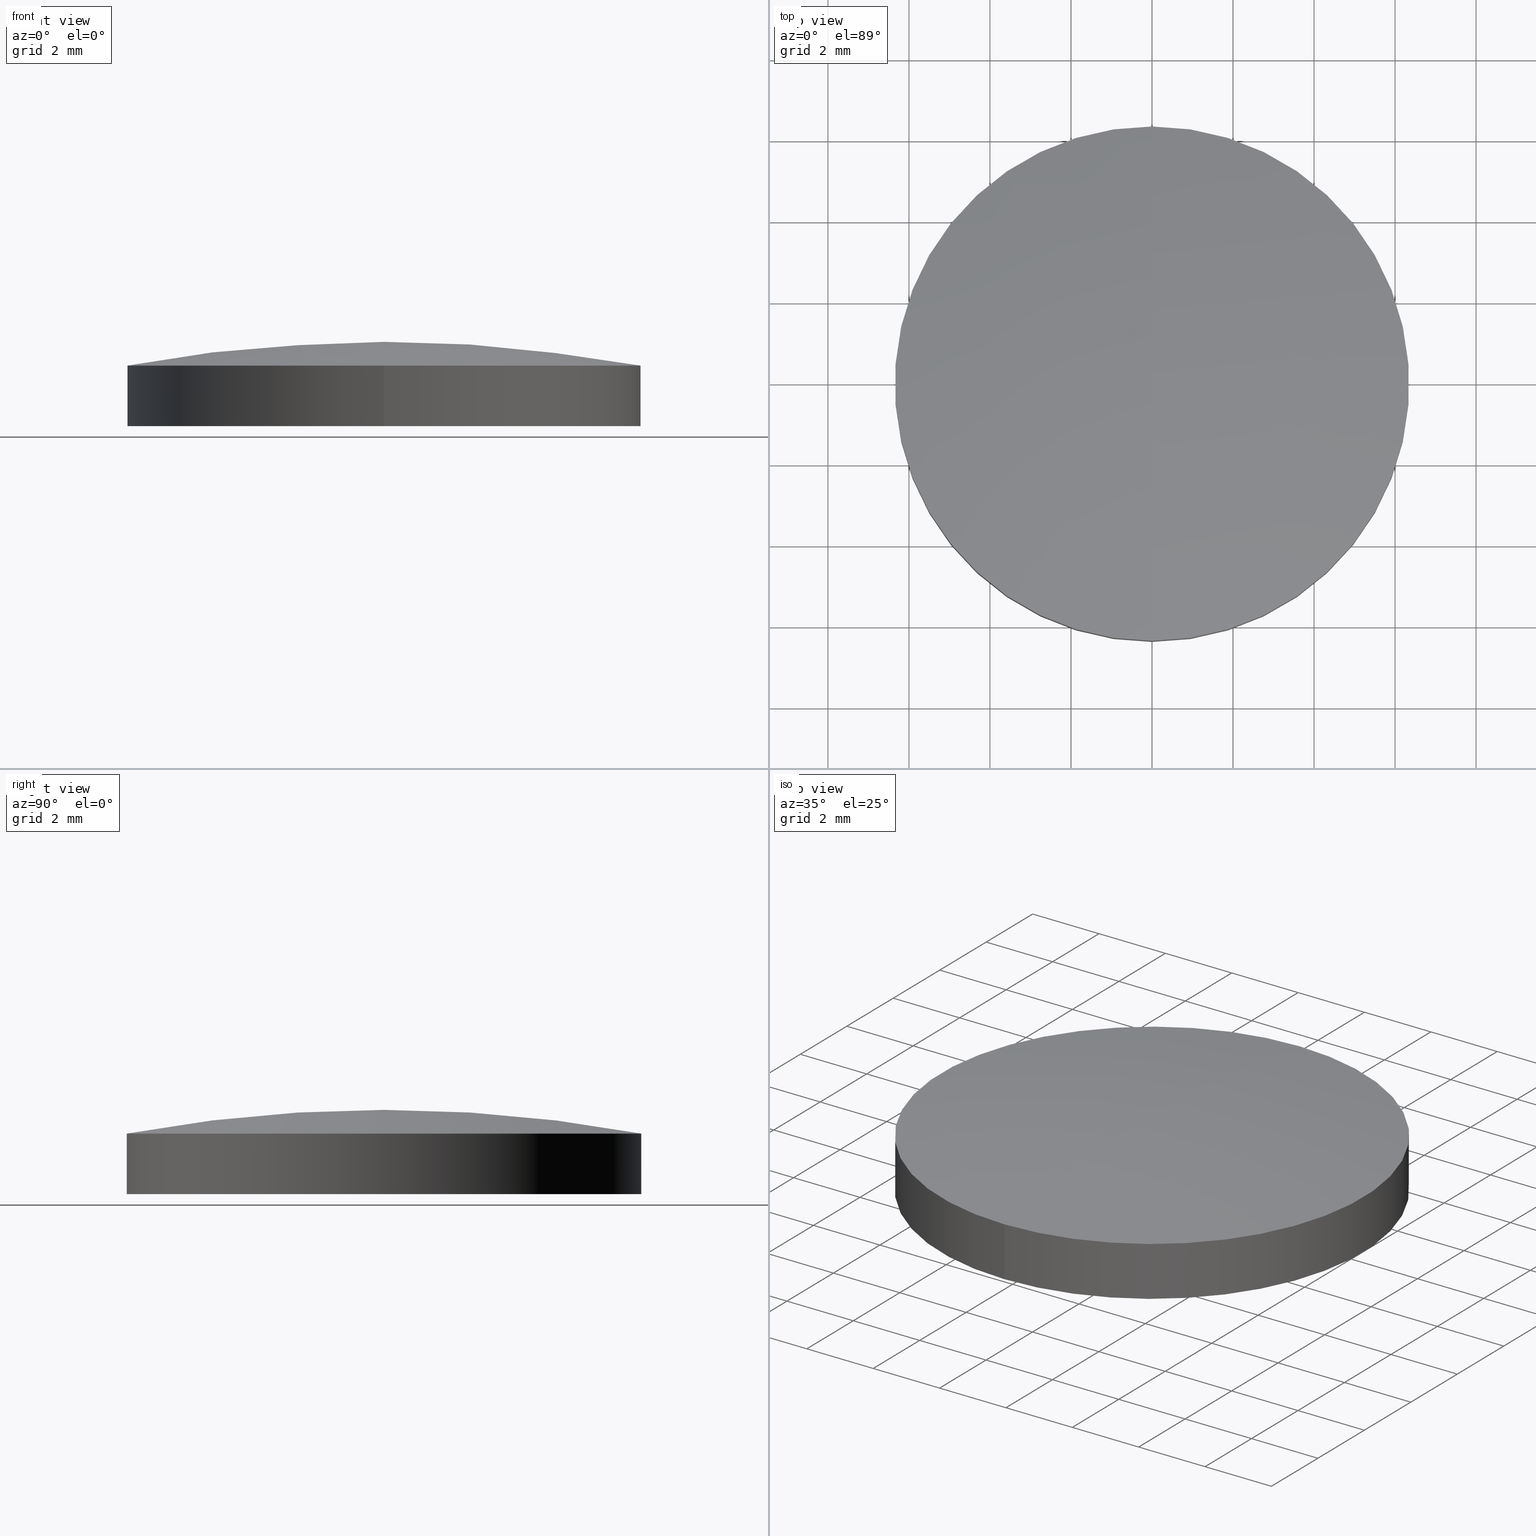
[diagram: canonical four-view strip — front | top / right | iso, engineering-drawing reading convention]
A machine part, canonical four-view strip (front | top / right | iso — engineering-drawing reading convention). The complete STEP part file that produces these views, byte-faithful:
ISO-10303-21;
HEADER;
FILE_DESCRIPTION (( 'STEP AP214' ),
    '1' );
FILE_NAME ('22971-E0W.STEP',
    '2011-10-06T18:34:03',
    ( 'Admin' ),
    ( '' ),
    'SwSTEP 2.0',
    'SolidWorks 2011',
    '' );
FILE_SCHEMA (( 'AUTOMOTIVE_DESIGN' ));
ENDSEC;

DATA;
#1 = SPHERICAL_SURFACE ( 'NONE', #36, 34.71000000000000100 ) ;
#2 = STYLED_ITEM ( 'NONE', ( #63 ), #143 ) ;
#3 =( LENGTH_UNIT ( ) NAMED_UNIT ( * ) SI_UNIT ( .MILLI., .METRE. ) );
#4 = MECHANICAL_DESIGN_GEOMETRIC_PRESENTATION_REPRESENTATION (  '', ( #2 ), #86 ) ;
#5 = PRESENTATION_LAYER_ASSIGNMENT (  '', '', ( #2 ) ) ;
#6 =( GEOMETRIC_REPRESENTATION_CONTEXT ( 3 ) GLOBAL_UNCERTAINTY_ASSIGNED_CONTEXT ( ( #208 ) ) GLOBAL_UNIT_ASSIGNED_CONTEXT ( ( #45, #20, #218 ) ) REPRESENTATION_CONTEXT ( 'NONE', 'WORKASPACE' ) );
#7 = DIRECTION ( 'NONE',  ( 0.0000000000000000000, -1.000000000000000000, -1.707404996040164500E-016 ) ) ;
#8 = CARTESIAN_POINT ( 'NONE',  ( 0.0000000000000000000, 0.0000000000000000000, -33.67000000000000200 ) ) ;
#9 = CARTESIAN_POINT ( 'NONE',  ( 0.0000000000000000000, -4.250749039840463200E-015, 1.039999999999999100 ) ) ;
#10 = DIRECTION ( 'NONE',  ( 0.0000000000000000000, 1.000000000000000000, 1.999105129330806300E-016 ) ) ;
#11 = DIRECTION ( 'NONE',  ( -1.000000000000000000, 0.0000000000000000000, 0.0000000000000000000 ) ) ;
#12 = FACE_OUTER_BOUND ( 'NONE', #118, .T. ) ;
#13 = DIRECTION ( 'NONE',  ( -0.0000000000000000000, -1.836970198721029900E-016, 1.000000000000000000 ) ) ;
#14 = PRESENTATION_STYLE_ASSIGNMENT (( #15 ) ) ;
#15 = SURFACE_STYLE_USAGE ( .BOTH. , #24 ) ;
#16 = CARTESIAN_POINT ( 'NONE',  ( 0.0000000000000000000, 1.076081682970368500E-016, 0.4542084157273872900 ) ) ;
#17 = CIRCLE ( 'NONE', #39, 6.349999999999999600 ) ;
#18 = SURFACE_STYLE_FILL_AREA ( #25 ) ;
#19 = CARTESIAN_POINT ( 'NONE',  ( 0.0000000000000000000, 3.820898013339744900E-016, -1.040000000000001400 ) ) ;
#20 =( NAMED_UNIT ( * ) PLANE_ANGLE_UNIT ( ) SI_UNIT ( $, .RADIAN. ) );
#21 = DIRECTION ( 'NONE',  ( 0.0000000000000000000, -1.000000000000000000, -1.878145495644181300E-016 ) ) ;
#22 = DIRECTION ( 'NONE',  ( -0.0000000000000000000, -1.836970198721029900E-016, 1.000000000000000000 ) ) ;
#23 = DIRECTION ( 'NONE',  ( -0.0000000000000000000, -1.836970198721029900E-016, 1.000000000000000000 ) ) ;
#24 = SURFACE_SIDE_STYLE ('',( #18 ) ) ;
#25 = FILL_AREA_STYLE ('',( #37 ) ) ;
#26 = CYLINDRICAL_SURFACE ( 'NONE', #32, 6.349999999999999600 ) ;
#27 = DIRECTION ( 'NONE',  ( -0.0000000000000000000, -1.836970198721029900E-016, 1.000000000000000000 ) ) ;
#28 = CARTESIAN_POINT ( 'NONE',  ( 0.0000000000000000000, -6.349999999999999600, 1.039999999999999100 ) ) ;
#29 = LINE ( 'NONE', #28, #35 ) ;
#30 = CARTESIAN_POINT ( 'NONE',  ( 7.776507174585691200E-016, 6.349999999999998800, 0.4542084157273885100 ) ) ;
#31 = CARTESIAN_POINT ( 'NONE',  ( 7.776507174585692200E-016, 6.349999999999999600, -1.040000000000000300 ) ) ;
#32 = AXIS2_PLACEMENT_3D ( 'NONE', #40, #23, #7 ) ;
#33 = COLOUR_RGB ( '',0.7921568627450980000, 0.8196078431372548800, 0.9333333333333333500 ) ;
#34 = CARTESIAN_POINT ( 'NONE',  ( 0.0000000000000000000, -6.349999999999999600, -1.040000000000002500 ) ) ;
#35 = VECTOR ( 'NONE', #27, 1000.000000000000000 ) ;
#36 = AXIS2_PLACEMENT_3D ( 'NONE', #8, #11, #10 ) ;
#37 = FILL_AREA_STYLE_COLOUR ( '', #33 ) ;
#38 =( NAMED_UNIT ( * ) PLANE_ANGLE_UNIT ( ) SI_UNIT ( $, .RADIAN. ) );
#39 = AXIS2_PLACEMENT_3D ( 'NONE', #19, #13, #44 ) ;
#40 = CARTESIAN_POINT ( 'NONE',  ( 0.0000000000000000000, 0.0000000000000000000, 1.040000000000000000 ) ) ;
#41 = CARTESIAN_POINT ( 'NONE',  ( 0.0000000000000000000, -6.349999999999998800, 0.4542084157273861300 ) ) ;
#42 = CIRCLE ( 'NONE', #43, 6.349999999999998800 ) ;
#43 = AXIS2_PLACEMENT_3D ( 'NONE', #16, #22, #21 ) ;
#44 = DIRECTION ( 'NONE',  ( 0.0000000000000000000, -1.000000000000000000, -1.707404996040164500E-016 ) ) ;
#45 =( LENGTH_UNIT ( ) NAMED_UNIT ( * ) SI_UNIT ( .MILLI., .METRE. ) );
#46 = MECHANICAL_DESIGN_GEOMETRIC_PRESENTATION_REPRESENTATION (  '', ( #48 ), #6 ) ;
#47 = PRESENTATION_LAYER_ASSIGNMENT (  '', '', ( #48 ) ) ;
#48 = STYLED_ITEM ( 'NONE', ( #14 ), #141 ) ;
#49 = UNCERTAINTY_MEASURE_WITH_UNIT (LENGTH_MEASURE( 1.000000000000000100E-005 ), #3, 'distance_accuracy_value', 'NONE');
#50 =( NAMED_UNIT ( * ) SI_UNIT ( $, .STERADIAN. ) SOLID_ANGLE_UNIT ( ) );
#51 = AXIS2_PLACEMENT_3D ( 'NONE', #56, #60, #59 ) ;
#52 = SURFACE_STYLE_FILL_AREA ( #61 ) ;
#53 =( NAMED_UNIT ( * ) PLANE_ANGLE_UNIT ( ) SI_UNIT ( $, .RADIAN. ) );
#54 = SURFACE_SIDE_STYLE ('',( #52 ) ) ;
#55 = FACE_OUTER_BOUND ( 'NONE', #136, .T. ) ;
#56 = CARTESIAN_POINT ( 'NONE',  ( 0.0000000000000000000, 3.820898013339744900E-016, -1.040000000000001400 ) ) ;
#57 = CIRCLE ( 'NONE', #51, 6.349999999999999600 ) ;
#58 = COLOUR_RGB ( '',0.7921568627450980000, 0.8196078431372548800, 0.9333333333333333500 ) ;
#59 = DIRECTION ( 'NONE',  ( 0.0000000000000000000, -1.000000000000000000, -1.707404996040164500E-016 ) ) ;
#60 = DIRECTION ( 'NONE',  ( -0.0000000000000000000, -1.836970198721029900E-016, 1.000000000000000000 ) ) ;
#61 = FILL_AREA_STYLE ('',( #66 ) ) ;
#62 = PRESENTATION_LAYER_ASSIGNMENT (  '', '', ( #67 ) ) ;
#63 = PRESENTATION_STYLE_ASSIGNMENT (( #64 ) ) ;
#64 = SURFACE_STYLE_USAGE ( .BOTH. , #54 ) ;
#65 =( LENGTH_UNIT ( ) NAMED_UNIT ( * ) SI_UNIT ( .MILLI., .METRE. ) );
#66 = FILL_AREA_STYLE_COLOUR ( '', #58 ) ;
#67 = STYLED_ITEM ( 'NONE', ( #76 ), #200 ) ;
#68 = MECHANICAL_DESIGN_GEOMETRIC_PRESENTATION_REPRESENTATION (  '', ( #67 ), #93 ) ;
#69 = AXIS2_PLACEMENT_3D ( 'NONE', #70, #89, #88 ) ;
#70 = CARTESIAN_POINT ( 'NONE',  ( 0.0000000000000000000, 3.820898013339743900E-016, -1.040000000000000700 ) ) ;
#71 = FILL_AREA_STYLE ('',( #72 ) ) ;
#72 = FILL_AREA_STYLE_COLOUR ( '', #83 ) ;
#73 = PLANE ( 'NONE',  #69 ) ;
#74 = FACE_OUTER_BOUND ( 'NONE', #121, .T. ) ;
#75 = DIRECTION ( 'NONE',  ( -1.000000000000000000, 0.0000000000000000000, 0.0000000000000000000 ) ) ;
#76 = PRESENTATION_STYLE_ASSIGNMENT (( #77 ) ) ;
#77 = SURFACE_STYLE_USAGE ( .BOTH. , #78 ) ;
#78 = SURFACE_SIDE_STYLE ('',( #79 ) ) ;
#79 = SURFACE_STYLE_FILL_AREA ( #71 ) ;
#80 = CARTESIAN_POINT ( 'NONE',  ( 0.0000000000000000000, 0.0000000000000000000, -33.67000000000000200 ) ) ;
#81 = PRESENTATION_LAYER_ASSIGNMENT (  '', '', ( #82 ) ) ;
#82 = STYLED_ITEM ( 'NONE', ( #90 ), #202 ) ;
#83 = COLOUR_RGB ( '',0.7921568627450980000, 0.8196078431372548800, 0.9333333333333333500 ) ;
#84 = DIRECTION ( 'NONE',  ( 0.0000000000000000000, 1.000000000000000000, 1.999105129330806300E-016 ) ) ;
#85 = SPHERICAL_SURFACE ( 'NONE', #91, 34.71000000000000100 ) ;
#86 =( GEOMETRIC_REPRESENTATION_CONTEXT ( 3 ) GLOBAL_UNCERTAINTY_ASSIGNED_CONTEXT ( ( #49 ) ) GLOBAL_UNIT_ASSIGNED_CONTEXT ( ( #3, #38, #50 ) ) REPRESENTATION_CONTEXT ( 'NONE', 'WORKASPACE' ) );
#87 = MECHANICAL_DESIGN_GEOMETRIC_PRESENTATION_REPRESENTATION (  '', ( #82 ), #110 ) ;
#88 = DIRECTION ( 'NONE',  ( 0.0000000000000000000, -1.000000000000000000, -1.836970198721029900E-016 ) ) ;
#89 = DIRECTION ( 'NONE',  ( 0.0000000000000000000, -1.836970198721029900E-016, 1.000000000000000000 ) ) ;
#90 = PRESENTATION_STYLE_ASSIGNMENT (( #104 ) ) ;
#91 = AXIS2_PLACEMENT_3D ( 'NONE', #80, #75, #84 ) ;
#92 = UNCERTAINTY_MEASURE_WITH_UNIT (LENGTH_MEASURE( 1.000000000000000100E-005 ), #65, 'distance_accuracy_value', 'NONE');
#93 =( GEOMETRIC_REPRESENTATION_CONTEXT ( 3 ) GLOBAL_UNCERTAINTY_ASSIGNED_CONTEXT ( ( #92 ) ) GLOBAL_UNIT_ASSIGNED_CONTEXT ( ( #65, #53, #94 ) ) REPRESENTATION_CONTEXT ( 'NONE', 'WORKASPACE' ) );
#94 =( NAMED_UNIT ( * ) SI_UNIT ( $, .STERADIAN. ) SOLID_ANGLE_UNIT ( ) );
#95 = AXIS2_PLACEMENT_3D ( 'NONE', #100, #99, #101 ) ;
#96 = CIRCLE ( 'NONE', #95, 34.71000000000000100 ) ;
#97 =( NAMED_UNIT ( * ) PLANE_ANGLE_UNIT ( ) SI_UNIT ( $, .RADIAN. ) );
#98 =( LENGTH_UNIT ( ) NAMED_UNIT ( * ) SI_UNIT ( .MILLI., .METRE. ) );
#99 = DIRECTION ( 'NONE',  ( 1.000000000000000000, 0.0000000000000000000, 0.0000000000000000000 ) ) ;
#100 = CARTESIAN_POINT ( 'NONE',  ( 0.0000000000000000000, 0.0000000000000000000, -33.67000000000000200 ) ) ;
#101 = DIRECTION ( 'NONE',  ( 0.0000000000000000000, 0.0000000000000000000, -1.000000000000000000 ) ) ;
#102 = FACE_OUTER_BOUND ( 'NONE', #199, .T. ) ;
#103 = COLOUR_RGB ( '',0.7921568627450980000, 0.8196078431372548800, 0.9333333333333333500 ) ;
#104 = SURFACE_STYLE_USAGE ( .BOTH. , #105 ) ;
#105 = SURFACE_SIDE_STYLE ('',( #106 ) ) ;
#106 = SURFACE_STYLE_FILL_AREA ( #107 ) ;
#107 = FILL_AREA_STYLE ('',( #108 ) ) ;
#108 = FILL_AREA_STYLE_COLOUR ( '', #103 ) ;
#109 =( NAMED_UNIT ( * ) SI_UNIT ( $, .STERADIAN. ) SOLID_ANGLE_UNIT ( ) );
#110 =( GEOMETRIC_REPRESENTATION_CONTEXT ( 3 ) GLOBAL_UNCERTAINTY_ASSIGNED_CONTEXT ( ( #111 ) ) GLOBAL_UNIT_ASSIGNED_CONTEXT ( ( #98, #97, #109 ) ) REPRESENTATION_CONTEXT ( 'NONE', 'WORKASPACE' ) );
#111 = UNCERTAINTY_MEASURE_WITH_UNIT (LENGTH_MEASURE( 1.000000000000000100E-005 ), #98, 'distance_accuracy_value', 'NONE');
#112 = ORIENTED_EDGE ( 'NONE', *, *, #142, .T. ) ;
#113 = EDGE_CURVE ( 'NONE', #135, #137, #225, .T. ) ;
#114 = ORIENTED_EDGE ( 'NONE', *, *, #113, .T. ) ;
#115 = ORIENTED_EDGE ( 'NONE', *, *, #201, .F. ) ;
#116 = ORIENTED_EDGE ( 'NONE', *, *, #205, .T. ) ;
#117 = ORIENTED_EDGE ( 'NONE', *, *, #126, .T. ) ;
#118 = EDGE_LOOP ( 'NONE', ( #117, #116, #115 ) ) ;
#119 = ADVANCED_FACE ( 'NONE', ( #219 ), #26, .T. ) ;
#120 = EDGE_CURVE ( 'NONE', #135, #140, #17, .T. ) ;
#121 = EDGE_LOOP ( 'NONE', ( #130, #124, #129 ) ) ;
#122 = ORIENTED_EDGE ( 'NONE', *, *, #113, .F. ) ;
#123 = ORIENTED_EDGE ( 'NONE', *, *, #134, .T. ) ;
#124 = ORIENTED_EDGE ( 'NONE', *, *, #203, .T. ) ;
#125 = ORIENTED_EDGE ( 'NONE', *, *, #126, .F. ) ;
#126 = EDGE_CURVE ( 'NONE', #137, #138, #42, .T. ) ;
#127 = ORIENTED_EDGE ( 'NONE', *, *, #203, .F. ) ;
#128 = ORIENTED_EDGE ( 'NONE', *, *, #120, .F. ) ;
#129 = ORIENTED_EDGE ( 'NONE', *, *, #201, .T. ) ;
#130 = ORIENTED_EDGE ( 'NONE', *, *, #205, .F. ) ;
#131 = EDGE_LOOP ( 'NONE', ( #122, #132, #123, #125 ) ) ;
#132 = ORIENTED_EDGE ( 'NONE', *, *, #120, .T. ) ;
#133 = ORIENTED_EDGE ( 'NONE', *, *, #134, .F. ) ;
#134 = EDGE_CURVE ( 'NONE', #140, #138, #29, .T. ) ;
#135 = VERTEX_POINT ( 'NONE', #31 ) ;
#136 = EDGE_LOOP ( 'NONE', ( #198, #128 ) ) ;
#137 = VERTEX_POINT ( 'NONE', #30 ) ;
#138 = VERTEX_POINT ( 'NONE', #41 ) ;
#139 = VERTEX_POINT ( 'NONE', #9 ) ;
#140 = VERTEX_POINT ( 'NONE', #34 ) ;
#141 = ADVANCED_FACE ( 'NONE', ( #12 ), #1, .T. ) ;
#142 = EDGE_CURVE ( 'NONE', #140, #135, #57, .T. ) ;
#143 = ADVANCED_FACE ( 'NONE', ( #55 ), #73, .F. ) ;
#144 = OPEN_SHELL ( 'NONE', ( #141, #202, #119, #200, #143 ) ) ;
#145 = DIRECTION ( 'NONE',  ( 0.0000000000000000000, -1.000000000000000000, -1.707404996040164500E-016 ) ) ;
#146 = DIRECTION ( 'NONE',  ( -0.0000000000000000000, -1.836970198721029900E-016, 1.000000000000000000 ) ) ;
#147 = AXIS2_PLACEMENT_3D ( 'NONE', #175, #146, #145 ) ;
#148 = DIRECTION ( 'NONE',  ( -0.0000000000000000000, -1.836970198721029900E-016, 1.000000000000000000 ) ) ;
#149 = SURFACE_STYLE_FILL_AREA ( #153 ) ;
#150 = DIRECTION ( 'NONE',  ( -1.224646799147353000E-016, -1.000000000000000000, 0.0000000000000000000 ) ) ;
#151 = DIRECTION ( 'NONE',  ( -1.000000000000000000, 1.224646799147353200E-016, 2.249639673992786700E-032 ) ) ;
#152 = AXIS2_PLACEMENT_3D ( 'NONE', #155, #151, #150 ) ;
#153 = FILL_AREA_STYLE ('',( #154 ) ) ;
#154 = FILL_AREA_STYLE_COLOUR ( '', #165 ) ;
#155 = CARTESIAN_POINT ( 'NONE',  ( 0.0000000000000000000, 0.0000000000000000000, -33.67000000000000200 ) ) ;
#156 = CYLINDRICAL_SURFACE ( 'NONE', #147, 6.349999999999999600 ) ;
#157 = CIRCLE ( 'NONE', #193, 6.349999999999998800 ) ;
#158 = CARTESIAN_POINT ( 'NONE',  ( 0.0000000000000000000, 0.0000000000000000000, 0.0000000000000000000 ) ) ;
#159 = MECHANICAL_DESIGN_GEOMETRIC_PRESENTATION_REPRESENTATION (  '', ( #161 ), #173 ) ;
#160 = PRESENTATION_LAYER_ASSIGNMENT (  '', '', ( #161 ) ) ;
#161 = STYLED_ITEM ( 'NONE', ( #162 ), #188 ) ;
#162 = PRESENTATION_STYLE_ASSIGNMENT (( #163 ) ) ;
#163 = SURFACE_STYLE_USAGE ( .BOTH. , #164 ) ;
#164 = SURFACE_SIDE_STYLE ('',( #149 ) ) ;
#165 = COLOUR_RGB ( '',0.7921568627450980000, 0.8196078431372548800, 0.9333333333333333500 ) ;
#166 = APPLICATION_CONTEXT ( 'automotive_design' ) ;
#167 = PRODUCT_DEFINITION_CONTEXT ( 'detailed design', #169, 'design' ) ;
#168 = APPLICATION_PROTOCOL_DEFINITION ( 'draft international standard', 'automotive_design', 1998, #169 ) ;
#169 = APPLICATION_CONTEXT ( 'automotive_design' ) ;
#170 = PRODUCT ( '22971-E0W', '22971-E0W', '', ( #171 ) ) ;
#171 = PRODUCT_CONTEXT ( 'NONE', #166, 'mechanical' ) ;
#172 = APPLICATION_PROTOCOL_DEFINITION ( 'draft international standard', 'automotive_design', 1998, #166 ) ;
#173 =( GEOMETRIC_REPRESENTATION_CONTEXT ( 3 ) GLOBAL_UNCERTAINTY_ASSIGNED_CONTEXT ( ( #174 ) ) GLOBAL_UNIT_ASSIGNED_CONTEXT ( ( #186, #185, #184 ) ) REPRESENTATION_CONTEXT ( 'NONE', 'WORKASPACE' ) );
#174 = UNCERTAINTY_MEASURE_WITH_UNIT (LENGTH_MEASURE( 1.000000000000000100E-005 ), #186, 'distance_accuracy_value', 'NONE');
#175 = CARTESIAN_POINT ( 'NONE',  ( 0.0000000000000000000, 0.0000000000000000000, 1.040000000000000000 ) ) ;
#176 = CARTESIAN_POINT ( 'NONE',  ( 0.0000000000000000000, 1.076081682970368500E-016, 0.4542084157273872900 ) ) ;
#177 =( NAMED_UNIT ( * ) PLANE_ANGLE_UNIT ( ) SI_UNIT ( $, .RADIAN. ) );
#178 = CIRCLE ( 'NONE', #152, 34.71000000000000100 ) ;
#179 =( LENGTH_UNIT ( ) NAMED_UNIT ( * ) SI_UNIT ( .MILLI., .METRE. ) );
#180 = PRODUCT_DEFINITION_SHAPE ( 'NONE', 'NONE',  #183 ) ;
#181 = PRODUCT_RELATED_PRODUCT_CATEGORY ( 'part', '', ( #170 ) ) ;
#182 = PRODUCT_DEFINITION_FORMATION_WITH_SPECIFIED_SOURCE ( 'ANY', '', #170, .NOT_KNOWN. ) ;
#183 = PRODUCT_DEFINITION ( 'UNKNOWN', '', #182, #167 ) ;
#184 =( NAMED_UNIT ( * ) SI_UNIT ( $, .STERADIAN. ) SOLID_ANGLE_UNIT ( ) );
#185 =( NAMED_UNIT ( * ) PLANE_ANGLE_UNIT ( ) SI_UNIT ( $, .RADIAN. ) );
#186 =( LENGTH_UNIT ( ) NAMED_UNIT ( * ) SI_UNIT ( .MILLI., .METRE. ) );
#187 = SHELL_BASED_SURFACE_MODEL ( 'NONE', ( #144 ) );
#188 = MANIFOLD_SURFACE_SHAPE_REPRESENTATION ( '22971-E0W', ( #187, #194 ), #189 ) ;
#189 =( GEOMETRIC_REPRESENTATION_CONTEXT ( 3 ) GLOBAL_UNCERTAINTY_ASSIGNED_CONTEXT ( ( #190 ) ) GLOBAL_UNIT_ASSIGNED_CONTEXT ( ( #179, #177, #191 ) ) REPRESENTATION_CONTEXT ( 'NONE', 'WORKASPACE' ) );
#190 = UNCERTAINTY_MEASURE_WITH_UNIT (LENGTH_MEASURE( 1.000000000000000100E-005 ), #179, 'distance_accuracy_value', 'NONE');
#191 =( NAMED_UNIT ( * ) SI_UNIT ( $, .STERADIAN. ) SOLID_ANGLE_UNIT ( ) );
#192 = DIRECTION ( 'NONE',  ( 0.0000000000000000000, -1.000000000000000000, -1.878145495644181300E-016 ) ) ;
#193 = AXIS2_PLACEMENT_3D ( 'NONE', #176, #148, #192 ) ;
#194 = AXIS2_PLACEMENT_3D ( 'NONE', #158, #197, #196 ) ;
#195 = SHAPE_DEFINITION_REPRESENTATION ( #180, #188 ) ;
#196 = DIRECTION ( 'NONE',  ( 1.000000000000000000, 0.0000000000000000000, 0.0000000000000000000 ) ) ;
#197 = DIRECTION ( 'NONE',  ( 0.0000000000000000000, 0.0000000000000000000, 1.000000000000000000 ) ) ;
#198 = ORIENTED_EDGE ( 'NONE', *, *, #142, .F. ) ;
#199 = EDGE_LOOP ( 'NONE', ( #112, #114, #127, #133 ) ) ;
#200 = ADVANCED_FACE ( 'NONE', ( #74 ), #85, .T. ) ;
#201 = EDGE_CURVE ( 'NONE', #137, #139, #96, .T. ) ;
#202 = ADVANCED_FACE ( 'NONE', ( #102 ), #156, .T. ) ;
#203 = EDGE_CURVE ( 'NONE', #138, #137, #157, .T. ) ;
#204 =( GEOMETRIC_REPRESENTATION_CONTEXT ( 3 ) GLOBAL_UNCERTAINTY_ASSIGNED_CONTEXT ( ( #206 ) ) GLOBAL_UNIT_ASSIGNED_CONTEXT ( ( #213, #217, #207 ) ) REPRESENTATION_CONTEXT ( 'NONE', 'WORKASPACE' ) );
#205 = EDGE_CURVE ( 'NONE', #138, #139, #178, .T. ) ;
#206 = UNCERTAINTY_MEASURE_WITH_UNIT (LENGTH_MEASURE( 1.000000000000000100E-005 ), #213, 'distance_accuracy_value', 'NONE');
#207 =( NAMED_UNIT ( * ) SI_UNIT ( $, .STERADIAN. ) SOLID_ANGLE_UNIT ( ) );
#208 = UNCERTAINTY_MEASURE_WITH_UNIT (LENGTH_MEASURE( 1.000000000000000100E-005 ), #45, 'distance_accuracy_value', 'NONE');
#209 = STYLED_ITEM ( 'NONE', ( #210 ), #119 ) ;
#210 = PRESENTATION_STYLE_ASSIGNMENT (( #211 ) ) ;
#211 = SURFACE_STYLE_USAGE ( .BOTH. , #212 ) ;
#212 = SURFACE_SIDE_STYLE ('',( #216 ) ) ;
#213 =( LENGTH_UNIT ( ) NAMED_UNIT ( * ) SI_UNIT ( .MILLI., .METRE. ) );
#214 = MECHANICAL_DESIGN_GEOMETRIC_PRESENTATION_REPRESENTATION (  '', ( #209 ), #204 ) ;
#215 = PRESENTATION_LAYER_ASSIGNMENT (  '', '', ( #209 ) ) ;
#216 = SURFACE_STYLE_FILL_AREA ( #220 ) ;
#217 =( NAMED_UNIT ( * ) PLANE_ANGLE_UNIT ( ) SI_UNIT ( $, .RADIAN. ) );
#218 =( NAMED_UNIT ( * ) SI_UNIT ( $, .STERADIAN. ) SOLID_ANGLE_UNIT ( ) );
#219 = FACE_OUTER_BOUND ( 'NONE', #131, .T. ) ;
#220 = FILL_AREA_STYLE ('',( #221 ) ) ;
#221 = FILL_AREA_STYLE_COLOUR ( '', #226 ) ;
#222 = DIRECTION ( 'NONE',  ( -0.0000000000000000000, -1.836970198721029900E-016, 1.000000000000000000 ) ) ;
#223 = VECTOR ( 'NONE', #222, 1000.000000000000000 ) ;
#224 = CARTESIAN_POINT ( 'NONE',  ( 7.776507174585692200E-016, 6.349999999999999600, 1.040000000000001100 ) ) ;
#225 = LINE ( 'NONE', #224, #223 ) ;
#226 = COLOUR_RGB ( '',0.7921568627450980000, 0.8196078431372548800, 0.9333333333333333500 ) ;
ENDSEC;
END-ISO-10303-21;
